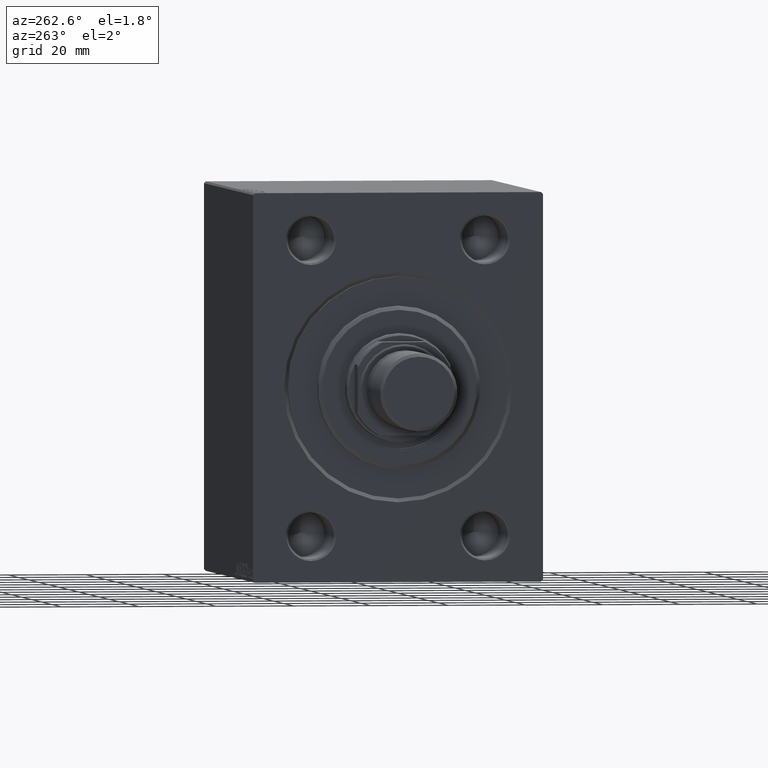
[diagram: clean part render]
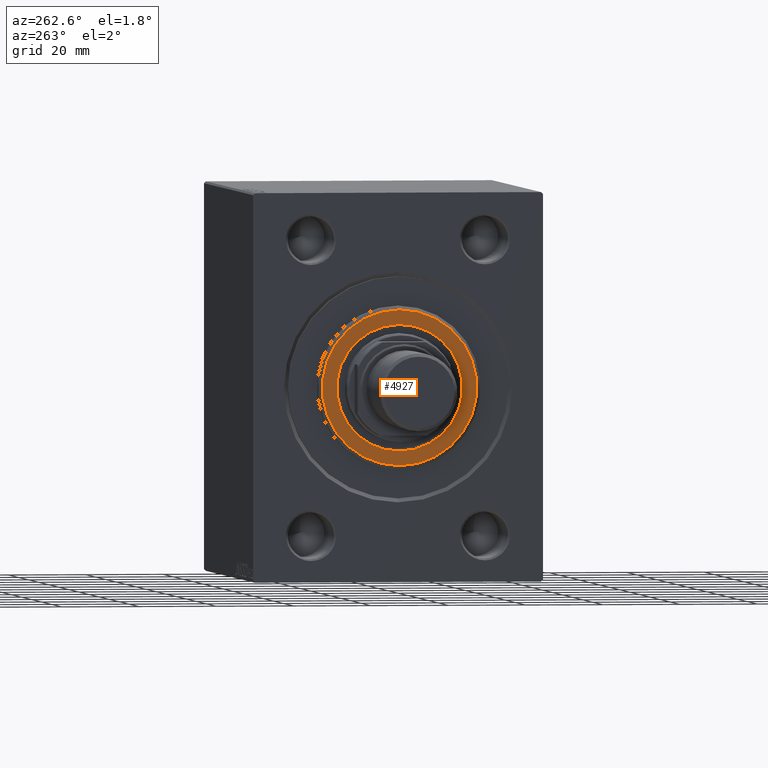
[diagram: same view with one face highlighted and labeled with its STEP entity id]
A machine part, auxiliary view. The second image highlights one B-rep face of the part: STEP entity #4927.
In plain terms, the highlighted planar face has unit normal (-1, 0, 0).
Its self-contained STEP definition (entity closure, byte-faithful):
#1524 = VERTEX_POINT ( 'NONE', #10323 ) ;
#2051 = FACE_BOUND ( 'NONE', #24903, .T. ) ;
#2613 = CIRCLE ( 'NONE', #12113, 19.99999999999999645 ) ;
#4927 = ADVANCED_FACE ( 'NONE', ( #29989, #2051 ), #43850, .T. ) ;
#4955 = CIRCLE ( 'NONE', #44137, 19.99999999999999645 ) ;
#5917 = DIRECTION ( 'NONE',  ( 1.000000000000000000, -0.000000000000000000, 0.000000000000000000 ) ) ;
#7752 = EDGE_CURVE ( 'NONE', #17007, #1524, #19830, .T. ) ;
#7804 = EDGE_LOOP ( 'NONE', ( #28528, #19038 ) ) ;
#10086 = DIRECTION ( 'NONE',  ( 1.000000000000000000, 0.000000000000000000, 0.000000000000000000 ) ) ;
#10323 = CARTESIAN_POINT ( 'NONE',  ( 3.000000000000000000, 0.000000000000000000, -16.25000000000000000 ) ) ;
#10379 = DIRECTION ( 'NONE',  ( 0.000000000000000000, 0.000000000000000000, -1.000000000000000000 ) ) ;
#10637 = ORIENTED_EDGE ( 'NONE', *, *, #24129, .F. ) ;
#11800 = CARTESIAN_POINT ( 'NONE',  ( 3.000000000000000000, 0.000000000000000000, 0.000000000000000000 ) ) ;
#12113 = AXIS2_PLACEMENT_3D ( 'NONE', #11800, #25640, #26082 ) ;
#12745 = CARTESIAN_POINT ( 'NONE',  ( 3.000000000000000000, 0.000000000000000000, 0.000000000000000000 ) ) ;
#15685 = VERTEX_POINT ( 'NONE', #32153 ) ;
#15744 = DIRECTION ( 'NONE',  ( 0.000000000000000000, 0.000000000000000000, -1.000000000000000000 ) ) ;
#17007 = VERTEX_POINT ( 'NONE', #27646 ) ;
#17796 = CARTESIAN_POINT ( 'NONE',  ( 3.000000000000000000, 0.000000000000000000, 0.000000000000000000 ) ) ;
#19038 = ORIENTED_EDGE ( 'NONE', *, *, #34218, .T. ) ;
#19040 = AXIS2_PLACEMENT_3D ( 'NONE', #12745, #5917, #40881 ) ;
#19830 = CIRCLE ( 'NONE', #22033, 16.25000000000000000 ) ;
#22033 = AXIS2_PLACEMENT_3D ( 'NONE', #17796, #10086, #41197 ) ;
#24129 = EDGE_CURVE ( 'NONE', #1524, #17007, #41514, .T. ) ;
#24447 = CARTESIAN_POINT ( 'NONE',  ( 3.000000000000000000, 0.000000000000000000, 19.99999999999999645 ) ) ;
#24903 = EDGE_LOOP ( 'NONE', ( #10637, #34491 ) ) ;
#25640 = DIRECTION ( 'NONE',  ( 1.000000000000000000, -0.000000000000000000, 0.000000000000000000 ) ) ;
#26082 = DIRECTION ( 'NONE',  ( 0.000000000000000000, 0.000000000000000000, -1.000000000000000000 ) ) ;
#27622 = CARTESIAN_POINT ( 'NONE',  ( 3.000000000000000000, 0.000000000000000000, 0.000000000000000000 ) ) ;
#27646 = CARTESIAN_POINT ( 'NONE',  ( 3.000000000000000000, 1.990051048614449313E-15, 16.25000000000000000 ) ) ;
#28528 = ORIENTED_EDGE ( 'NONE', *, *, #43182, .T. ) ;
#29789 = DIRECTION ( 'NONE',  ( 1.000000000000000000, 0.000000000000000000, 0.000000000000000000 ) ) ;
#29989 = FACE_OUTER_BOUND ( 'NONE', #7804, .T. ) ;
#32091 = AXIS2_PLACEMENT_3D ( 'NONE', #37069, #29789, #15744 ) ;
#32153 = CARTESIAN_POINT ( 'NONE',  ( 3.000000000000000000, 2.510525938252074087E-15, -19.99999999999999645 ) ) ;
#34218 = EDGE_CURVE ( 'NONE', #15685, #42601, #2613, .T. ) ;
#34491 = ORIENTED_EDGE ( 'NONE', *, *, #7752, .F. ) ;
#37069 = CARTESIAN_POINT ( 'NONE',  ( 3.000000000000000000, 0.000000000000000000, 0.000000000000000000 ) ) ;
#40881 = DIRECTION ( 'NONE',  ( 0.000000000000000000, 0.000000000000000000, -1.000000000000000000 ) ) ;
#41197 = DIRECTION ( 'NONE',  ( 0.000000000000000000, 0.000000000000000000, -1.000000000000000000 ) ) ;
#41488 = DIRECTION ( 'NONE',  ( 1.000000000000000000, -0.000000000000000000, 0.000000000000000000 ) ) ;
#41514 = CIRCLE ( 'NONE', #32091, 16.25000000000000000 ) ;
#42601 = VERTEX_POINT ( 'NONE', #24447 ) ;
#43182 = EDGE_CURVE ( 'NONE', #42601, #15685, #4955, .T. ) ;
#43850 = PLANE ( 'NONE',  #19040 ) ;
#44137 = AXIS2_PLACEMENT_3D ( 'NONE', #27622, #41488, #10379 ) ;